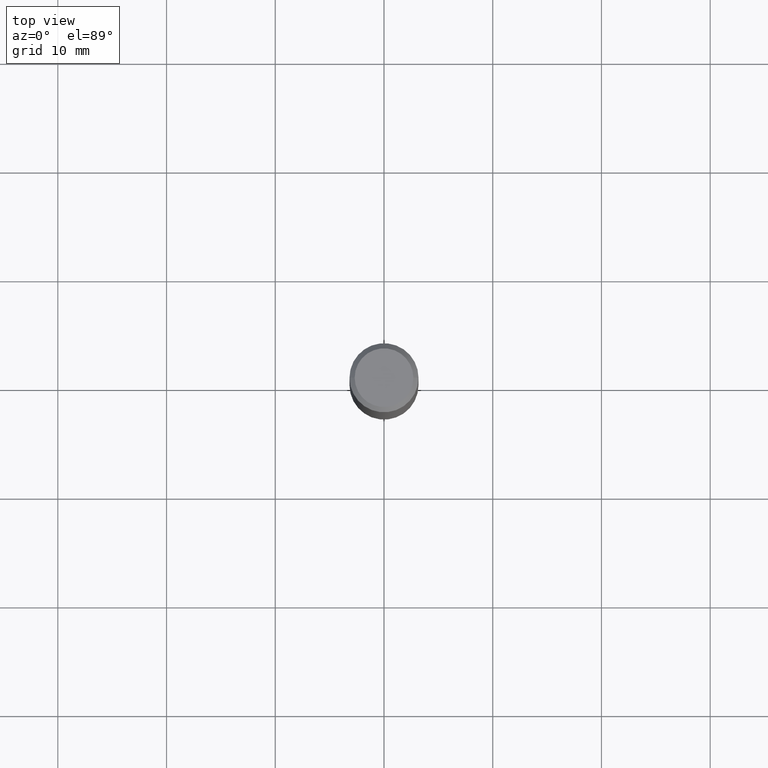
[diagram: clean part render]
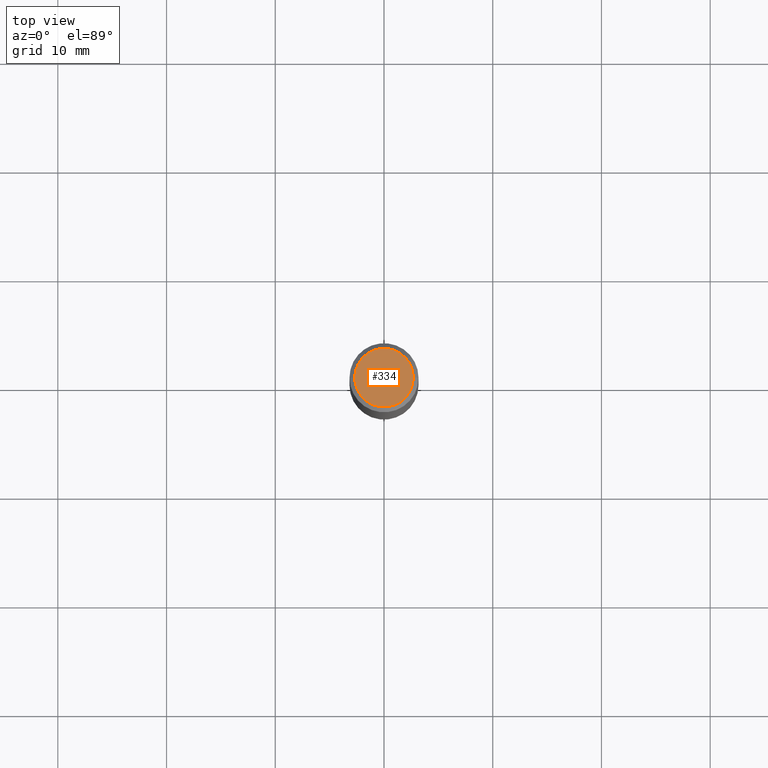
[diagram: same view with one face highlighted and labeled with its STEP entity id]
A machine part, top view. The second image highlights one B-rep face of the part: STEP entity #334.
In plain terms, the highlighted planar face has unit normal (0, -0, -1).
Its self-contained STEP definition (entity closure, byte-faithful):
#1 = FACE_OUTER_BOUND ( 'NONE', #80, .T. ) ;
#14 = ORIENTED_EDGE ( 'NONE', *, *, #386, .T. ) ;
#22 = DIRECTION ( 'NONE',  ( -2.445468806185136597E-29, 3.491481338843145583E-15, 1.000000000000000000 ) ) ;
#40 = DIRECTION ( 'NONE',  ( 1.000000000000000000, -6.982962677686266711E-15, 4.876153107228683844E-29 ) ) ;
#57 = VERTEX_POINT ( 'NONE', #66 ) ;
#66 = CARTESIAN_POINT ( 'NONE',  ( 0.1062499999999999972, -8.259777185439879685E-16, 7.182553477054055401E-19 ) ) ;
#78 = CARTESIAN_POINT ( 'NONE',  ( -8.782355238379108562E-48, 1.253887571509288664E-33, 3.591276738499616421E-19 ) ) ;
#80 = EDGE_LOOP ( 'NONE', ( #14, #377 ) ) ;
#123 = AXIS2_PLACEMENT_3D ( 'NONE', #78, #156, #193 ) ;
#140 = CIRCLE ( 'NONE', #164, 0.1062499999999999972 ) ;
#156 = DIRECTION ( 'NONE',  ( 2.438088387897960049E-29, -3.491481338843145188E-15, -1.000000000000000000 ) ) ;
#164 = AXIS2_PLACEMENT_3D ( 'NONE', #374, #338, #40 ) ;
#186 = CIRCLE ( 'NONE', #255, 0.1062499999999999972 ) ;
#193 = DIRECTION ( 'NONE',  ( -1.000000000000000000, 6.982962677686265922E-15, -4.876176775795935793E-29 ) ) ;
#196 = CARTESIAN_POINT ( 'NONE',  ( -1.756471047675821712E-47, 2.507775143018577328E-33, 7.182553476999232843E-19 ) ) ;
#238 = DIRECTION ( 'NONE',  ( 1.000000000000000000, -6.982962677686266711E-15, 4.876153107228683844E-29 ) ) ;
#255 = AXIS2_PLACEMENT_3D ( 'NONE', #196, #22, #238 ) ;
#275 = PLANE ( 'NONE',  #123 ) ;
#332 = EDGE_CURVE ( 'NONE', #57, #352, #140, .T. ) ;
#334 = ADVANCED_FACE ( 'NONE', ( #1 ), #275, .F. ) ;
#338 = DIRECTION ( 'NONE',  ( -2.445468806185136597E-29, 3.491481338843145583E-15, 1.000000000000000000 ) ) ;
#352 = VERTEX_POINT ( 'NONE', #413 ) ;
#374 = CARTESIAN_POINT ( 'NONE',  ( -1.756471047675821712E-47, 2.507775143018577328E-33, 7.182553476999232843E-19 ) ) ;
#377 = ORIENTED_EDGE ( 'NONE', *, *, #332, .T. ) ;
#386 = EDGE_CURVE ( 'NONE', #352, #57, #186, .T. ) ;
#413 = CARTESIAN_POINT ( 'NONE',  ( -0.1062499999999999972, 7.746724220558198188E-16, 7.182553476946202362E-19 ) ) ;